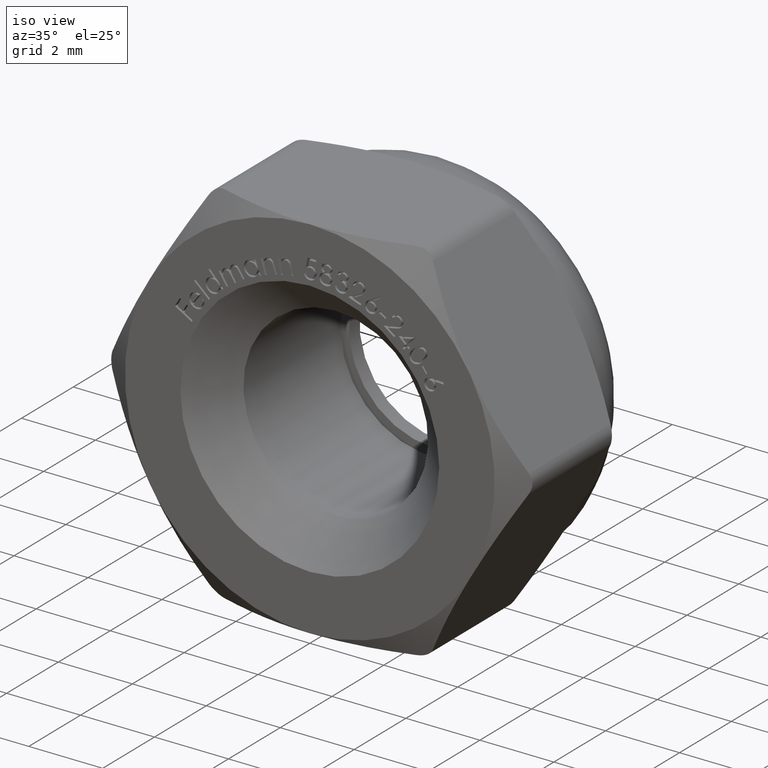
[diagram: clean part render]
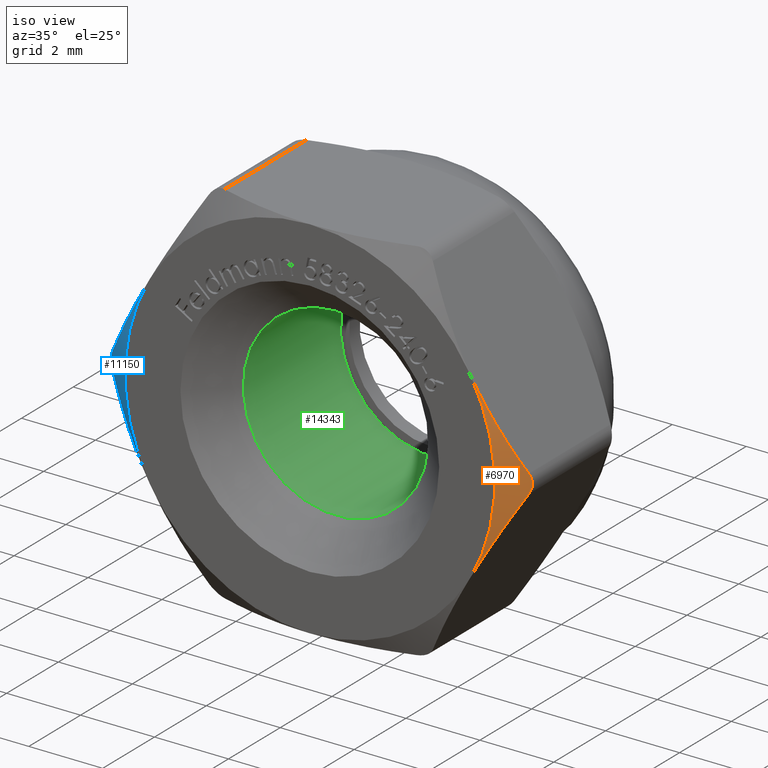
[diagram: same view with three faces highlighted in distinct colors, each labeled with its STEP entity id]
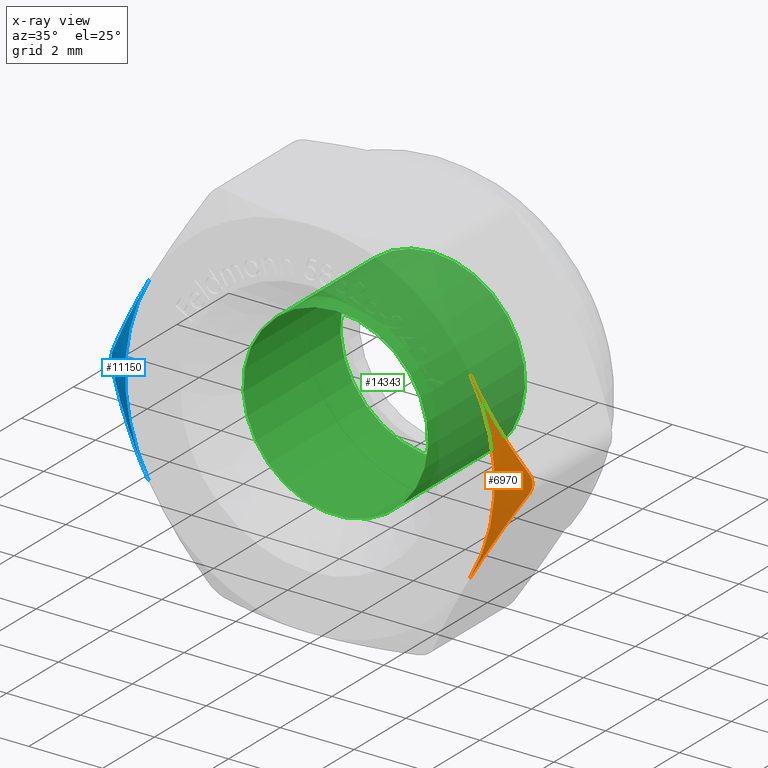
[diagram: x-ray of the same camera — body ghosted, the three highlighted faces saturated]
A machine part, iso view with three faces highlighted in distinct colors.
The next image is the same camera in x-ray (body ghosted, the three faces saturated) — at least one of them is partly hidden behind the body in this view.
Their STEP definitions:

[orange] entity #6970 — the highlighted conical surface has half-angle 56.31 deg.
#351 = CARTESIAN_POINT ( 'NONE',  ( 0.000000000000000000, -2.000000000000000000, 0.000000000000000000 ) ) ;
#530 = CARTESIAN_POINT ( 'NONE',  ( 4.880583014952740939, -1.923006844278641214, 1.546582247544158850 ) ) ;
#1413 = ORIENTED_EDGE ( 'NONE', *, *, #2687, .F. ) ;
#1654 = CARTESIAN_POINT ( 'NONE',  ( 5.629165124598852543, -1.576857443471785025, 0.2499999999999993616 ) ) ;
#1661 = CIRCLE ( 'NONE', #7931, 5.000000000000000000 ) ;
#2362 = CARTESIAN_POINT ( 'NONE',  ( 5.629165124592926617, -1.576857443475427889, -0.2500000000102653996 ) ) ;
#2687 = EDGE_CURVE ( 'NONE', #8693, #9653, #3368, .T. ) ;
#2689 = CONICAL_SURFACE ( 'NONE', #6946, 5.000000000000000000, 0.9827937232473290541 ) ;
#2775 = CARTESIAN_POINT ( 'NONE',  ( 0.000000000000000000, -2.000000000000000000, 0.000000000000000000 ) ) ;
#2788 = EDGE_LOOP ( 'NONE', ( #8719, #13708, #1413, #8332 ) ) ;
#2804 = CARTESIAN_POINT ( 'NONE',  ( 5.629165124598852543, -1.576857443471785025, 0.2499999999999993616 ) ) ;
#2971 = B_SPLINE_CURVE_WITH_KNOTS ( 'NONE', 3,
 ( #14556, #5144, #14657, #7325, #7379, #6153 ),
 .UNSPECIFIED., .F., .F.,
 ( 4, 2, 4 ),
 ( 1.143822479907631551E-14, 0.0002645522985932812691, 0.0005291045971751243138 ),
 .UNSPECIFIED. ) ;
#3049 = CARTESIAN_POINT ( 'NONE',  ( 4.330127018922193649, -2.000000000000000000, 2.499999999999999112 ) ) ;
#3368 = B_SPLINE_CURVE_WITH_KNOTS ( 'NONE', 3,
 ( #3049, #9034, #6512, #11558, #530, #15081, #4234, #1654 ),
 .UNSPECIFIED., .F., .F.,
 ( 4, 2, 2, 4 ),
 ( 0.002932312231493078465, 0.003585949827794484603, 0.004239587424095890740, 0.005546862616698703882 ),
 .UNSPECIFIED. ) ;
#3845 = FACE_OUTER_BOUND ( 'NONE', #2788, .T. ) ;
#4150 = CARTESIAN_POINT ( 'NONE',  ( 4.330127018922192761, -2.000000000000000000, -2.500000000000001776 ) ) ;
#4234 = CARTESIAN_POINT ( 'NONE',  ( 5.418280720964324004, -1.706504666854632424, 0.6152625016188628670 ) ) ;
#5144 = CARTESIAN_POINT ( 'NONE',  ( 5.671865796465570320, -1.550605983202926863, -0.1760402668095215062 ) ) ;
#5324 = B_SPLINE_CURVE_WITH_KNOTS ( 'NONE', 3,
 ( #5486, #12673, #9167, #15319 ),
 .UNSPECIFIED., .F., .F.,
 ( 4, 4 ),
 ( 0.0003000040435072202699, 0.002932312231493081935 ),
 .UNSPECIFIED. ) ;
#5486 = CARTESIAN_POINT ( 'NONE',  ( 5.629165124592926617, -1.576857443475427889, -0.2500000000102653996 ) ) ;
#6153 = CARTESIAN_POINT ( 'NONE',  ( 5.629165124598852543, -1.576857443471785025, 0.2499999999999993616 ) ) ;
#6263 = DIRECTION ( 'NONE',  ( -0.000000000000000000, -1.000000000000000000, -0.000000000000000000 ) ) ;
#6512 = CARTESIAN_POINT ( 'NONE',  ( 4.551841116540101595, -1.990070288847813673, 2.115979918171498664 ) ) ;
#6946 = AXIS2_PLACEMENT_3D ( 'NONE', #351, #7682, #10193 ) ;
#6970 = ADVANCED_FACE ( 'NONE', ( #3845 ), #2689, .T. ) ;
#7325 = CARTESIAN_POINT ( 'NONE',  ( 5.696235328879590831, -1.535847965667582971, 0.08795915973061547988 ) ) ;
#7379 = CARTESIAN_POINT ( 'NONE',  ( 5.671884272523906034, -1.550594624513571995, 0.1760082653377764428 ) ) ;
#7480 = DIRECTION ( 'NONE',  ( 1.776356839400250465E-15, 0.000000000000000000, 1.000000000000000000 ) ) ;
#7682 = DIRECTION ( 'NONE',  ( -0.000000000000000000, 1.000000000000000000, -0.000000000000000000 ) ) ;
#7931 = AXIS2_PLACEMENT_3D ( 'NONE', #2775, #6263, #7480 ) ;
#8332 = ORIENTED_EDGE ( 'NONE', *, *, #12757, .F. ) ;
#8693 = VERTEX_POINT ( 'NONE', #12445 ) ;
#8719 = ORIENTED_EDGE ( 'NONE', *, *, #11504, .F. ) ;
#9034 = CARTESIAN_POINT ( 'NONE',  ( 4.440489780694669264, -1.999999999999999556, 2.308846089346453301 ) ) ;
#9167 = CARTESIAN_POINT ( 'NONE',  ( 4.774576363798094469, -1.999999999999999556, -1.730191153284238892 ) ) ;
#9653 = VERTEX_POINT ( 'NONE', #2804 ) ;
#9848 = VERTEX_POINT ( 'NONE', #4150 ) ;
#10193 = DIRECTION ( 'NONE',  ( 0.000000000000000000, 0.000000000000000000, -1.000000000000000000 ) ) ;
#11504 = EDGE_CURVE ( 'NONE', #13679, #9848, #5324, .T. ) ;
#11558 = CARTESIAN_POINT ( 'NONE',  ( 4.771604689444383318, -1.951542283519671184, 1.735338244248411987 ) ) ;
#11646 = EDGE_CURVE ( 'NONE', #13679, #9653, #2971, .T. ) ;
#12445 = CARTESIAN_POINT ( 'NONE',  ( 4.330127018922193649, -2.000000000000000000, 2.499999999999999112 ) ) ;
#12673 = CARTESIAN_POINT ( 'NONE',  ( 5.205818941106688413, -1.837121627419725067, -0.9832570989988049792 ) ) ;
#12757 = EDGE_CURVE ( 'NONE', #9848, #8693, #1661, .T. ) ;
#13679 = VERTEX_POINT ( 'NONE', #2362 ) ;
#13708 = ORIENTED_EDGE ( 'NONE', *, *, #11646, .T. ) ;
#14556 = CARTESIAN_POINT ( 'NONE',  ( 5.629165124592926617, -1.576857443475427889, -0.2500000000102653996 ) ) ;
#14657 = CARTESIAN_POINT ( 'NONE',  ( 5.696069074695030210, -1.535949072760036893, -0.08889920073667219313 ) ) ;
#15081 = CARTESIAN_POINT ( 'NONE',  ( 5.205117713247125799, -1.812768551553246121, 0.9844716612792479005 ) ) ;
#15319 = CARTESIAN_POINT ( 'NONE',  ( 4.330127018922192761, -2.000000000000000000, -2.500000000000001776 ) ) ;

[blue] entity #11150 — the highlighted conical surface has half-angle 56.31 deg.
#406 = VERTEX_POINT ( 'NONE', #6980 ) ;
#540 = CONICAL_SURFACE ( 'NONE', #2785, 5.000000000000000000, 0.9827937232473290541 ) ;
#1000 = CARTESIAN_POINT ( 'NONE',  ( -4.330127018922193649, -2.000000000000000000, 2.499999999999999112 ) ) ;
#1658 = EDGE_CURVE ( 'NONE', #6928, #15288, #3466, .T. ) ;
#2237 = CARTESIAN_POINT ( 'NONE',  ( -5.205117713247125799, -1.812768551553247898, -0.9844716612792496768 ) ) ;
#2751 = CARTESIAN_POINT ( 'NONE',  ( -4.774576363798093581, -2.000000000000001332, 1.730191153284235783 ) ) ;
#2785 = AXIS2_PLACEMENT_3D ( 'NONE', #11749, #3197, #12966 ) ;
#3197 = DIRECTION ( 'NONE',  ( -0.000000000000000000, 1.000000000000000000, -0.000000000000000000 ) ) ;
#3466 = B_SPLINE_CURVE_WITH_KNOTS ( 'NONE', 3,
 ( #11366, #8564, #2751, #12130 ),
 .UNSPECIFIED., .F., .F.,
 ( 4, 4 ),
 ( 0.0003000040435072218420, 0.002932312231493080200 ),
 .UNSPECIFIED. ) ;
#3551 = ORIENTED_EDGE ( 'NONE', *, *, #13057, .F. ) ;
#3626 = CARTESIAN_POINT ( 'NONE',  ( -4.551841116540100707, -1.990070288847813673, -2.115979918171498664 ) ) ;
#4844 = B_SPLINE_CURVE_WITH_KNOTS ( 'NONE', 3,
 ( #9991, #5399, #7867, #10147, #6620, #10267 ),
 .UNSPECIFIED., .F., .F.,
 ( 4, 2, 4 ),
 ( 1.143946889189166862E-14, 0.0002645522985932817570, 0.0005291045971751239885 ),
 .UNSPECIFIED. ) ;
#5399 = CARTESIAN_POINT ( 'NONE',  ( -5.671865796465565879, -1.550605983202929750, 0.1760402668095193413 ) ) ;
#5865 = B_SPLINE_CURVE_WITH_KNOTS ( 'NONE', 3,
 ( #7084, #15756, #3626, #7246, #9538, #2237, #8391, #8285 ),
 .UNSPECIFIED., .F., .F.,
 ( 4, 2, 2, 4 ),
 ( 0.002932312231493080634, 0.003585949827794486337, 0.004239587424095892475, 0.005546862616698703882 ),
 .UNSPECIFIED. ) ;
#6236 = ORIENTED_EDGE ( 'NONE', *, *, #12823, .T. ) ;
#6620 = CARTESIAN_POINT ( 'NONE',  ( -5.671884272523904258, -1.550594624513572883, -0.1760082653377791073 ) ) ;
#6928 = VERTEX_POINT ( 'NONE', #10030 ) ;
#6937 = ORIENTED_EDGE ( 'NONE', *, *, #1658, .F. ) ;
#6980 = CARTESIAN_POINT ( 'NONE',  ( -4.330127018922193649, -2.000000000000000000, -2.500000000000000000 ) ) ;
#7008 = ORIENTED_EDGE ( 'NONE', *, *, #15304, .F. ) ;
#7084 = CARTESIAN_POINT ( 'NONE',  ( -4.330127018922193649, -2.000000000000000000, -2.500000000000000000 ) ) ;
#7215 = CIRCLE ( 'NONE', #11816, 5.000000000000000000 ) ;
#7246 = CARTESIAN_POINT ( 'NONE',  ( -4.771604689444382430, -1.951542283519671850, -1.735338244248412876 ) ) ;
#7867 = CARTESIAN_POINT ( 'NONE',  ( -5.696069074695028434, -1.535949072760038892, 0.08889920073666923717 ) ) ;
#8285 = CARTESIAN_POINT ( 'NONE',  ( -5.629165124598849879, -1.576857443471785913, -0.2500000000000014433 ) ) ;
#8391 = CARTESIAN_POINT ( 'NONE',  ( -5.418280720964323116, -1.706504666854633978, -0.6152625016188646434 ) ) ;
#8564 = CARTESIAN_POINT ( 'NONE',  ( -5.205818941106685749, -1.837121627419726844, 0.9832570989988034249 ) ) ;
#8774 = CARTESIAN_POINT ( 'NONE',  ( -5.629165124598849879, -1.576857443471785913, -0.2500000000000014433 ) ) ;
#9538 = CARTESIAN_POINT ( 'NONE',  ( -4.880583014952740051, -1.923006844278641880, -1.546582247544159072 ) ) ;
#9991 = CARTESIAN_POINT ( 'NONE',  ( -5.629165124592923064, -1.576857443475430109, 0.2500000000102639564 ) ) ;
#10030 = CARTESIAN_POINT ( 'NONE',  ( -5.629165124592923064, -1.576857443475430109, 0.2500000000102639564 ) ) ;
#10147 = CARTESIAN_POINT ( 'NONE',  ( -5.696235328879588167, -1.535847965667584747, -0.08795915973061803339 ) ) ;
#10267 = CARTESIAN_POINT ( 'NONE',  ( -5.629165124598849879, -1.576857443471785913, -0.2500000000000014433 ) ) ;
#10862 = DIRECTION ( 'NONE',  ( -0.000000000000000000, -1.000000000000000000, -0.000000000000000000 ) ) ;
#11150 = ADVANCED_FACE ( 'NONE', ( #14125 ), #540, .T. ) ;
#11366 = CARTESIAN_POINT ( 'NONE',  ( -5.629165124592923064, -1.576857443475430109, 0.2500000000102639564 ) ) ;
#11749 = CARTESIAN_POINT ( 'NONE',  ( 0.000000000000000000, -2.000000000000000000, 0.000000000000000000 ) ) ;
#11816 = AXIS2_PLACEMENT_3D ( 'NONE', #13242, #10862, #11911 ) ;
#11911 = DIRECTION ( 'NONE',  ( 0.000000000000000000, 0.000000000000000000, 1.000000000000000000 ) ) ;
#12130 = CARTESIAN_POINT ( 'NONE',  ( -4.330127018922193649, -2.000000000000000000, 2.499999999999999112 ) ) ;
#12823 = EDGE_CURVE ( 'NONE', #6928, #13789, #4844, .T. ) ;
#12966 = DIRECTION ( 'NONE',  ( 0.000000000000000000, 0.000000000000000000, -1.000000000000000000 ) ) ;
#13057 = EDGE_CURVE ( 'NONE', #15288, #406, #7215, .T. ) ;
#13242 = CARTESIAN_POINT ( 'NONE',  ( 0.000000000000000000, -2.000000000000000000, 0.000000000000000000 ) ) ;
#13789 = VERTEX_POINT ( 'NONE', #8774 ) ;
#14125 = FACE_OUTER_BOUND ( 'NONE', #15427, .T. ) ;
#15288 = VERTEX_POINT ( 'NONE', #1000 ) ;
#15304 = EDGE_CURVE ( 'NONE', #406, #13789, #5865, .T. ) ;
#15427 = EDGE_LOOP ( 'NONE', ( #6937, #6236, #7008, #3551 ) ) ;
#15756 = CARTESIAN_POINT ( 'NONE',  ( -4.440489780694668376, -2.000000000000000444, -2.308846089346453301 ) ) ;

[green] entity #14343 — the highlighted cylindrical surface (bore or boss wall) has radius 2.5 mm, axis along (-0, -1, -0).
#261 = ORIENTED_EDGE ( 'NONE', *, *, #13463, .T. ) ;
#1218 = CIRCLE ( 'NONE', #9582, 2.499999999999999556 ) ;
#1295 = CARTESIAN_POINT ( 'NONE',  ( 0.000000000000000000, -1.000000000000001776, 2.499999999999999556 ) ) ;
#1358 = AXIS2_PLACEMENT_3D ( 'NONE', #8005, #2001, #10403 ) ;
#2001 = DIRECTION ( 'NONE',  ( -0.000000000000000000, -1.000000000000000000, -0.000000000000000000 ) ) ;
#2576 = CARTESIAN_POINT ( 'NONE',  ( 0.000000000000000000, 2.750000000000000444, 2.499999999999999556 ) ) ;
#3018 = EDGE_CURVE ( 'NONE', #12274, #12274, #1218, .T. ) ;
#3372 = CYLINDRICAL_SURFACE ( 'NONE', #1358, 2.499999999999999556 ) ;
#4870 = CARTESIAN_POINT ( 'NONE',  ( 0.000000000000000000, -1.000000000000001776, 0.000000000000000000 ) ) ;
#5687 = CIRCLE ( 'NONE', #5774, 2.499999999999999556 ) ;
#5774 = AXIS2_PLACEMENT_3D ( 'NONE', #7665, #6482, #6330 ) ;
#5907 = EDGE_LOOP ( 'NONE', ( #6736 ) ) ;
#6330 = DIRECTION ( 'NONE',  ( 0.000000000000000000, 0.000000000000000000, 1.000000000000000000 ) ) ;
#6482 = DIRECTION ( 'NONE',  ( 0.000000000000000000, 1.000000000000000000, 0.000000000000000000 ) ) ;
#6736 = ORIENTED_EDGE ( 'NONE', *, *, #3018, .T. ) ;
#7127 = VERTEX_POINT ( 'NONE', #2576 ) ;
#7665 = CARTESIAN_POINT ( 'NONE',  ( 0.000000000000000000, 2.750000000000000444, 0.000000000000000000 ) ) ;
#8005 = CARTESIAN_POINT ( 'NONE',  ( 0.000000000000000000, -2.000000000000000000, 0.000000000000000000 ) ) ;
#9469 = FACE_OUTER_BOUND ( 'NONE', #5907, .T. ) ;
#9582 = AXIS2_PLACEMENT_3D ( 'NONE', #4870, #13407, #14642 ) ;
#10403 = DIRECTION ( 'NONE',  ( 0.000000000000000000, 0.000000000000000000, -1.000000000000000000 ) ) ;
#12274 = VERTEX_POINT ( 'NONE', #1295 ) ;
#12622 = EDGE_LOOP ( 'NONE', ( #261 ) ) ;
#13407 = DIRECTION ( 'NONE',  ( 0.000000000000000000, -1.000000000000000000, 0.000000000000000000 ) ) ;
#13463 = EDGE_CURVE ( 'NONE', #7127, #7127, #5687, .T. ) ;
#13689 = FACE_OUTER_BOUND ( 'NONE', #12622, .T. ) ;
#14343 = ADVANCED_FACE ( 'NONE', ( #9469, #13689 ), #3372, .F. ) ;
#14642 = DIRECTION ( 'NONE',  ( 0.000000000000000000, 0.000000000000000000, 1.000000000000000000 ) ) ;